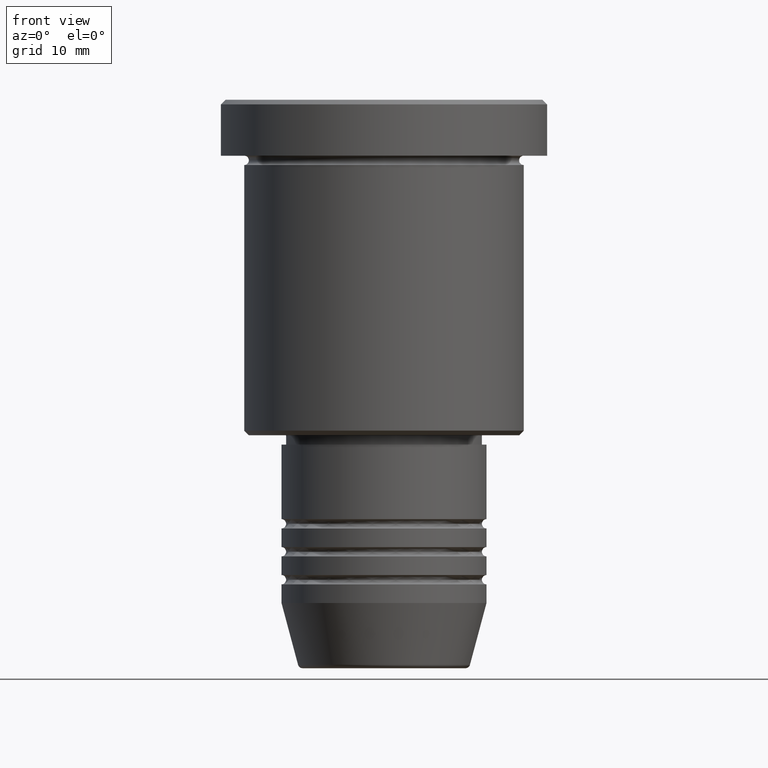
[diagram: clean part render]
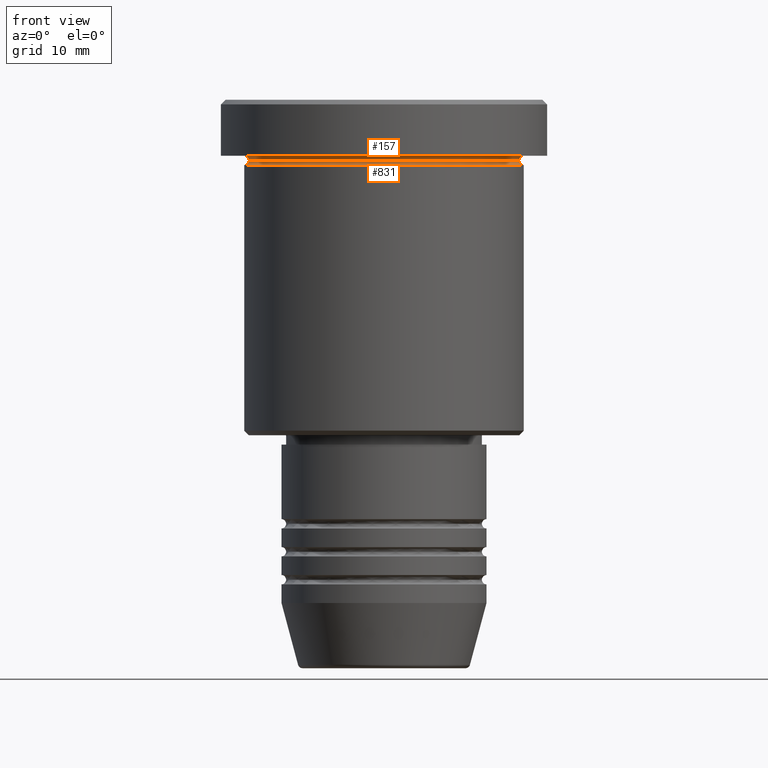
[diagram: same view with one multi-face feature highlighted, each face labeled with its STEP entity id]
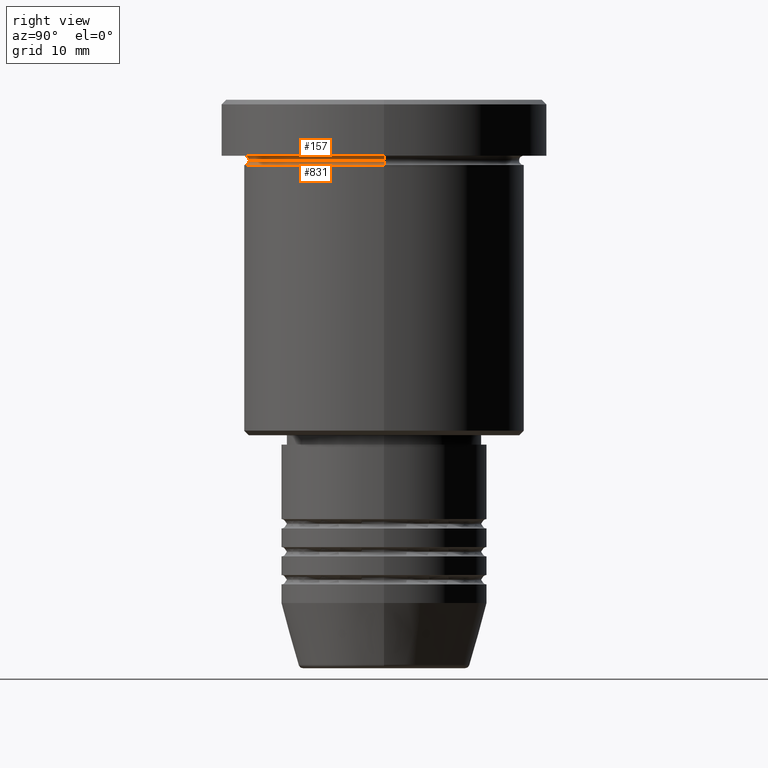
[diagram: same view with one multi-face feature highlighted, each face labeled with its STEP entity id]
A machine part, front view. The highlighted faces form ONE feature: a constant-radius fillet chain: 2 tangent blend faces with common blend radius 0.5 mm. The faces share edges in the B-rep.
A second angle (right view) of the same feature is appended — it is thin or edge-on in the first view.
Their STEP definitions:
[1] entity #831 (Torus):
#11 = AXIS2_PLACEMENT_3D ( 'NONE', #1062, #358, #714 ) ;
#21 = DIRECTION ( 'NONE',  ( -0.000000000000000000, -0.000000000000000000, 1.000000000000000000 ) ) ;
#89 = EDGE_CURVE ( 'NONE', #764, #233, #802, .T. ) ;
#174 = AXIS2_PLACEMENT_3D ( 'NONE', #616, #444, #1162 ) ;
#185 = FACE_OUTER_BOUND ( 'NONE', #666, .T. ) ;
#233 = VERTEX_POINT ( 'NONE', #916 ) ;
#318 = AXIS2_PLACEMENT_3D ( 'NONE', #937, #21, #1044 ) ;
#356 = ORIENTED_EDGE ( 'NONE', *, *, #89, .T. ) ;
#358 = DIRECTION ( 'NONE',  ( -0.000000000000000000, -0.000000000000000000, 1.000000000000000000 ) ) ;
#400 = EDGE_CURVE ( 'NONE', #1163, #233, #632, .T. ) ;
#412 = CARTESIAN_POINT ( 'NONE',  ( 0.000000000000000000, 0.000000000000000000, -6.499999999999995559 ) ) ;
#430 = CARTESIAN_POINT ( 'NONE',  ( -14.49999999999999822, 1.806354028742345802E-15, -6.499999999999995559 ) ) ;
#434 = CARTESIAN_POINT ( 'NONE',  ( -15.00000000000000000, 1.836970198721029589E-15, -6.999999999999995559 ) ) ;
#444 = DIRECTION ( 'NONE',  ( 0.000000000000000000, -1.000000000000000000, 0.000000000000000000 ) ) ;
#478 = CARTESIAN_POINT ( 'NONE',  ( -15.00000000000000000, 1.836970198721029589E-15, -6.499999999999995559 ) ) ;
#616 = CARTESIAN_POINT ( 'NONE',  ( 15.00000000000000000, 0.000000000000000000, -6.499999999999995559 ) ) ;
#632 = CIRCLE ( 'NONE', #174, 0.5000000000000004441 ) ;
#666 = EDGE_LOOP ( 'NONE', ( #1110, #695, #356, #993 ) ) ;
#679 = DIRECTION ( 'NONE',  ( 1.000000000000000000, 0.000000000000000000, 0.000000000000000000 ) ) ;
#695 = ORIENTED_EDGE ( 'NONE', *, *, #905, .T. ) ;
#714 = DIRECTION ( 'NONE',  ( 1.000000000000000000, 0.000000000000000000, 0.000000000000000000 ) ) ;
#764 = VERTEX_POINT ( 'NONE', #434 ) ;
#802 = CIRCLE ( 'NONE', #11, 15.00000000000000000 ) ;
#828 = CIRCLE ( 'NONE', #318, 14.49999999999999822 ) ;
#831 = ADVANCED_FACE ( 'NONE', ( #185 ), #996, .F. ) ;
#842 = DIRECTION ( 'NONE',  ( -1.000000000000000000, 1.224646799147349509E-16, 0.000000000000000000 ) ) ;
#846 = EDGE_CURVE ( 'NONE', #1096, #1163, #828, .T. ) ;
#905 = EDGE_CURVE ( 'NONE', #1096, #764, #997, .T. ) ;
#916 = CARTESIAN_POINT ( 'NONE',  ( 15.00000000000000000, 0.000000000000000000, -6.999999999999995559 ) ) ;
#937 = CARTESIAN_POINT ( 'NONE',  ( 0.000000000000000000, 0.000000000000000000, -6.499999999999995559 ) ) ;
#944 = AXIS2_PLACEMENT_3D ( 'NONE', #412, #953, #679 ) ;
#953 = DIRECTION ( 'NONE',  ( -0.000000000000000000, -0.000000000000000000, 1.000000000000000000 ) ) ;
#986 = CARTESIAN_POINT ( 'NONE',  ( 14.49999999999999822, 0.000000000000000000, -6.499999999999995559 ) ) ;
#993 = ORIENTED_EDGE ( 'NONE', *, *, #400, .F. ) ;
#996 = TOROIDAL_SURFACE ( 'NONE', #944, 15.00000000000000000, 0.5000000000000000000 ) ;
#997 = CIRCLE ( 'NONE', #1155, 0.5000000000000004441 ) ;
#1044 = DIRECTION ( 'NONE',  ( 1.000000000000000000, 0.000000000000000000, 0.000000000000000000 ) ) ;
#1062 = CARTESIAN_POINT ( 'NONE',  ( 0.000000000000000000, 0.000000000000000000, -6.999999999999995559 ) ) ;
#1096 = VERTEX_POINT ( 'NONE', #430 ) ;
#1107 = DIRECTION ( 'NONE',  ( 1.224646799147353207E-16, 1.000000000000000000, 0.000000000000000000 ) ) ;
#1110 = ORIENTED_EDGE ( 'NONE', *, *, #846, .F. ) ;
#1155 = AXIS2_PLACEMENT_3D ( 'NONE', #478, #1107, #842 ) ;
#1162 = DIRECTION ( 'NONE',  ( 0.000000000000000000, 0.000000000000000000, -1.000000000000000000 ) ) ;
#1163 = VERTEX_POINT ( 'NONE', #986 ) ;
[2] entity #157 (Torus):
#9 = AXIS2_PLACEMENT_3D ( 'NONE', #355, #896, #520 ) ;
#21 = DIRECTION ( 'NONE',  ( -0.000000000000000000, -0.000000000000000000, 1.000000000000000000 ) ) ;
#45 = ORIENTED_EDGE ( 'NONE', *, *, #846, .T. ) ;
#63 = CIRCLE ( 'NONE', #9, 0.5000000000000004441 ) ;
#74 = DIRECTION ( 'NONE',  ( -1.000000000000000000, 0.000000000000000000, 0.000000000000000000 ) ) ;
#92 = ORIENTED_EDGE ( 'NONE', *, *, #104, .T. ) ;
#100 = AXIS2_PLACEMENT_3D ( 'NONE', #1175, #192, #920 ) ;
#102 = CARTESIAN_POINT ( 'NONE',  ( 0.000000000000000000, 0.000000000000000000, -5.999999999999995559 ) ) ;
#104 = EDGE_CURVE ( 'NONE', #1163, #686, #298, .T. ) ;
#116 = EDGE_LOOP ( 'NONE', ( #45, #92, #617, #735 ) ) ;
#157 = ADVANCED_FACE ( 'NONE', ( #1072 ), #280, .F. ) ;
#192 = DIRECTION ( 'NONE',  ( 0.000000000000000000, 0.000000000000000000, -1.000000000000000000 ) ) ;
#280 = TOROIDAL_SURFACE ( 'NONE', #100, 15.00000000000000000, 0.5000000000000000000 ) ;
#298 = CIRCLE ( 'NONE', #911, 0.5000000000000004441 ) ;
#318 = AXIS2_PLACEMENT_3D ( 'NONE', #937, #21, #1044 ) ;
#355 = CARTESIAN_POINT ( 'NONE',  ( -15.00000000000000000, 0.000000000000000000, -6.499999999999995559 ) ) ;
#430 = CARTESIAN_POINT ( 'NONE',  ( -14.49999999999999822, 1.806354028742345802E-15, -6.499999999999995559 ) ) ;
#439 = CIRCLE ( 'NONE', #909, 15.00000000000000000 ) ;
#520 = DIRECTION ( 'NONE',  ( 0.000000000000000000, 0.000000000000000000, -1.000000000000000000 ) ) ;
#553 = DIRECTION ( 'NONE',  ( -1.224646799147353207E-16, 1.000000000000000000, 0.000000000000000000 ) ) ;
#583 = CARTESIAN_POINT ( 'NONE',  ( -15.00000000000000000, 0.000000000000000000, -5.999999999999994671 ) ) ;
#617 = ORIENTED_EDGE ( 'NONE', *, *, #744, .F. ) ;
#686 = VERTEX_POINT ( 'NONE', #974 ) ;
#735 = ORIENTED_EDGE ( 'NONE', *, *, #1002, .F. ) ;
#744 = EDGE_CURVE ( 'NONE', #913, #686, #439, .T. ) ;
#828 = CIRCLE ( 'NONE', #318, 14.49999999999999822 ) ;
#846 = EDGE_CURVE ( 'NONE', #1096, #1163, #828, .T. ) ;
#896 = DIRECTION ( 'NONE',  ( -0.000000000000000000, -1.000000000000000000, -0.000000000000000000 ) ) ;
#909 = AXIS2_PLACEMENT_3D ( 'NONE', #102, #1024, #74 ) ;
#911 = AXIS2_PLACEMENT_3D ( 'NONE', #961, #553, #1026 ) ;
#913 = VERTEX_POINT ( 'NONE', #583 ) ;
#920 = DIRECTION ( 'NONE',  ( -1.000000000000000000, 0.000000000000000000, 0.000000000000000000 ) ) ;
#937 = CARTESIAN_POINT ( 'NONE',  ( 0.000000000000000000, 0.000000000000000000, -6.499999999999995559 ) ) ;
#961 = CARTESIAN_POINT ( 'NONE',  ( 15.00000000000000000, 1.836970198721029589E-15, -6.499999999999995559 ) ) ;
#974 = CARTESIAN_POINT ( 'NONE',  ( 15.00000000000000000, 1.836970198721029589E-15, -5.999999999999994671 ) ) ;
#986 = CARTESIAN_POINT ( 'NONE',  ( 14.49999999999999822, 0.000000000000000000, -6.499999999999995559 ) ) ;
#1002 = EDGE_CURVE ( 'NONE', #1096, #913, #63, .T. ) ;
#1024 = DIRECTION ( 'NONE',  ( -0.000000000000000000, -0.000000000000000000, 1.000000000000000000 ) ) ;
#1026 = DIRECTION ( 'NONE',  ( -1.000000000000000000, -1.224646799147349509E-16, 0.000000000000000000 ) ) ;
#1044 = DIRECTION ( 'NONE',  ( 1.000000000000000000, 0.000000000000000000, 0.000000000000000000 ) ) ;
#1072 = FACE_OUTER_BOUND ( 'NONE', #116, .T. ) ;
#1096 = VERTEX_POINT ( 'NONE', #430 ) ;
#1163 = VERTEX_POINT ( 'NONE', #986 ) ;
#1175 = CARTESIAN_POINT ( 'NONE',  ( 0.000000000000000000, 0.000000000000000000, -6.499999999999995559 ) ) ;